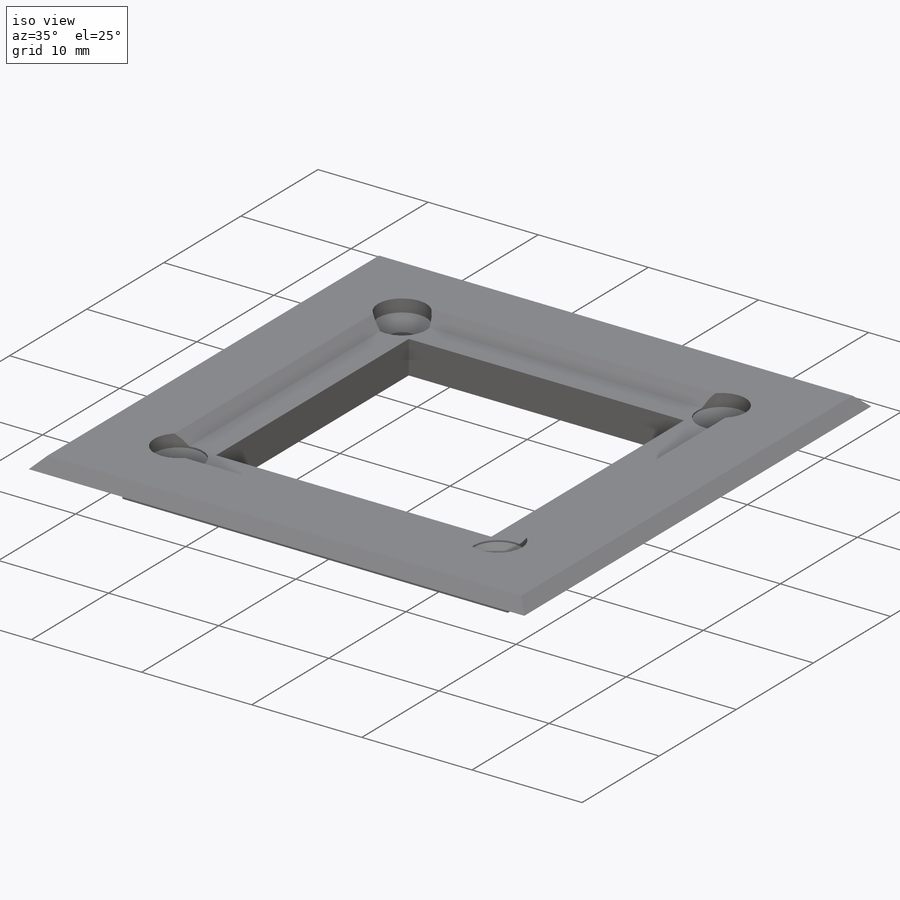
[diagram: iso view]
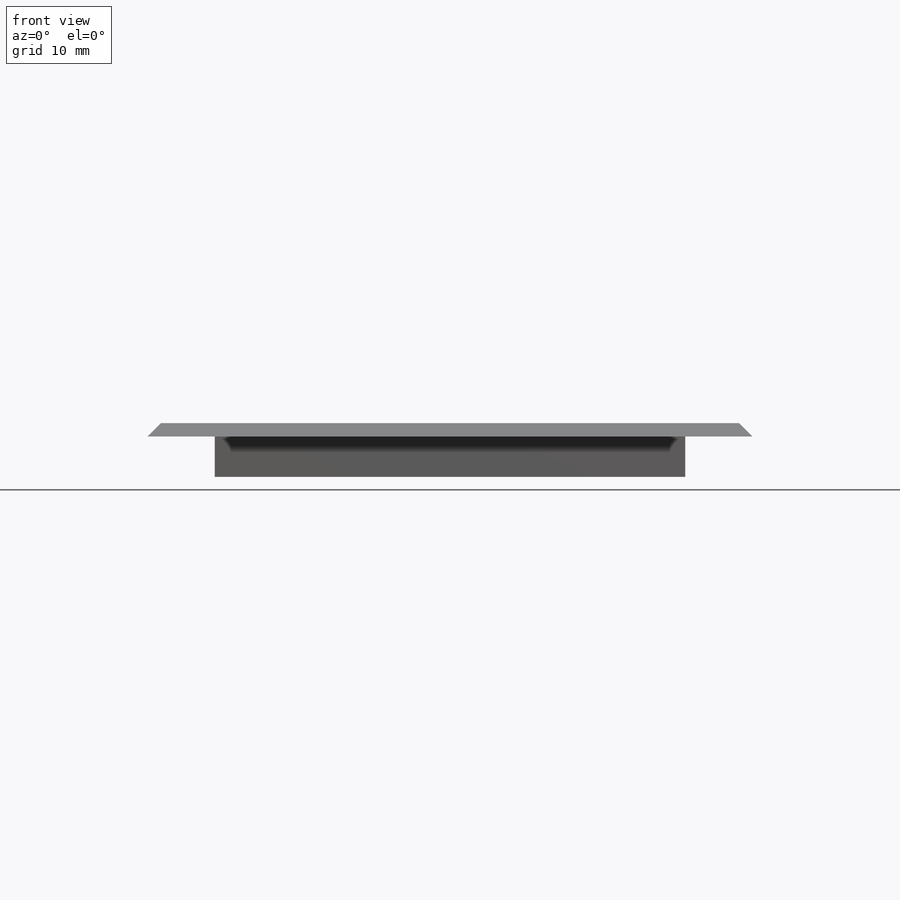
[diagram: front view]
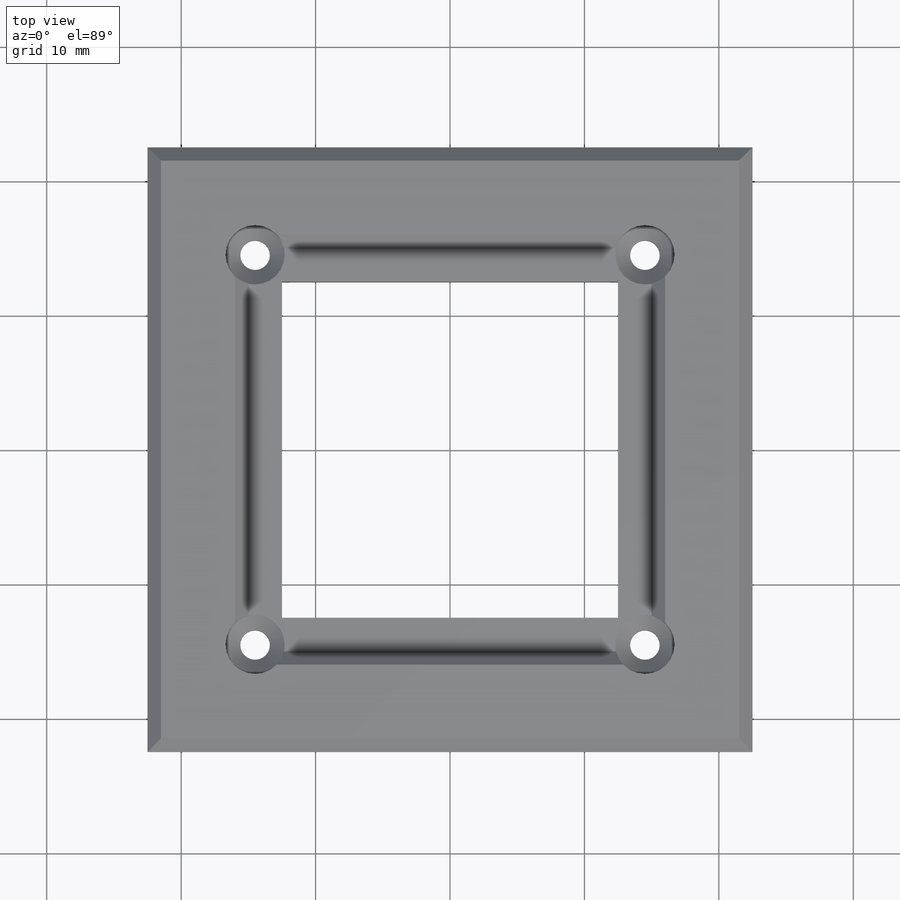
[diagram: top view]
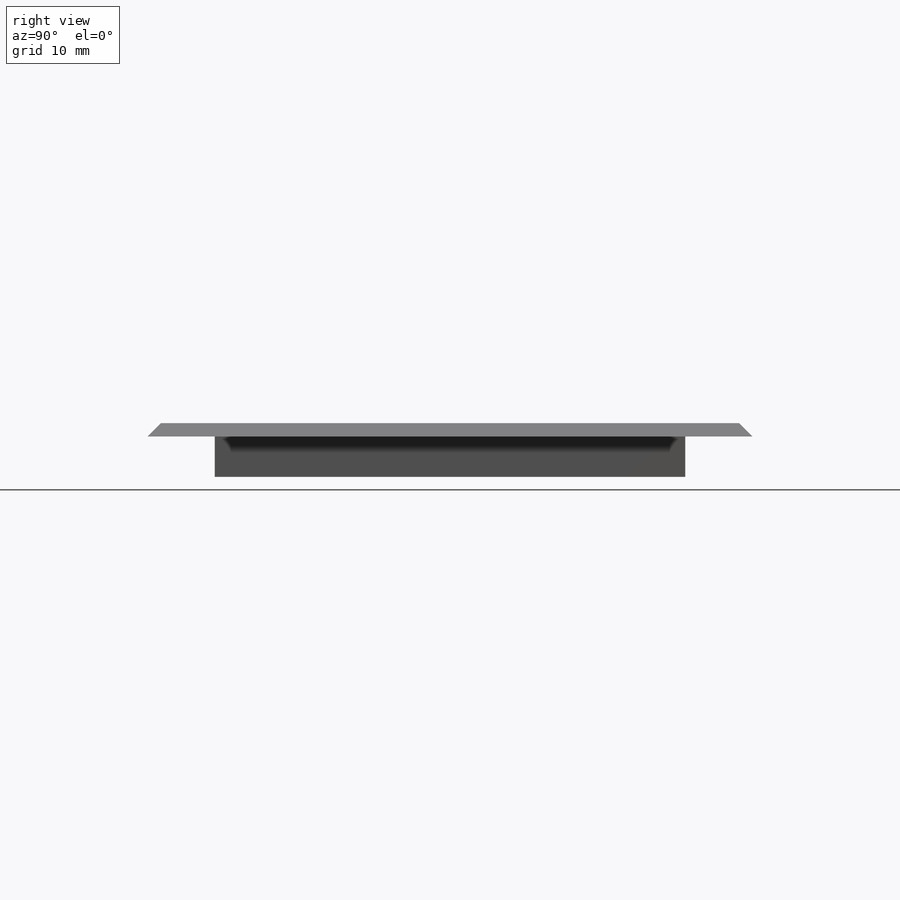
[diagram: right view]
SOLIDWORKS PART (.sldprt)
format: sldprt  version: not decoded by parser v0  size: 265,728 bytes
history: native  units: mm
features: sketch x6, extrude x2, cut_extrude x2, chamfer x2, material x1, hole x1 (+13 scaffold rows collapsed)
feature tree (27):
  scaffold x13  (default folders/planes/origin — collapsed)
  material  "Material <not specified>"
  sketch  "Sketch1"  dims[D1=35.0mm]
  extrude  "Boss-Extrude1"  Depth=3mm
  sketch  "Sketch3"  dims[D1=25.0mm]
  cut_extrude  "Cut-Extrude2"  [1 undecoded]
  chamfer  "Chamfer1"  Distance=3mm Angle=45deg
  sketch  "Sketch4"  dims[D1=45.0mm D2=30.0mm]
  extrude  "Boss-Extrude2"  Depth=1mm
  chamfer  "Chamfer2"  Distance=1mm Angle=45deg
  hole  "CSK for M2 Flat Head Machine Screw1"  Diameter=2.2mm Depth=20mm
  sketch  "Sketch6"  dims[D1=14.5mm]
  sketch  "Sketch5"  dims[hole-wizard template sketch: 31 standard entries collapsed; hole parameters kept: c10.Hole Dia.=2.2mm c10.Hole Depth=20.0mm c10.C'Sink Dia.=4.4mm c10.D4=~17.960512mm c10.C'Sink Angle=90.0deg c10.D5=~14.816244mm c10.Drill Angle=118.0deg c10.Head Clearance=0.15mm]
  sketch  "Sketch7"
  cut_extrude  "Cut-Extrude3"  Depth=10mm
decode coverage: 11 of 13 modeling features carry decoded parameters
note: ~ marks probable driven/reference dimensions
note: 1 parameter value undecoded
note: suppression state not decoded; provenance and decode notes live in map.json
